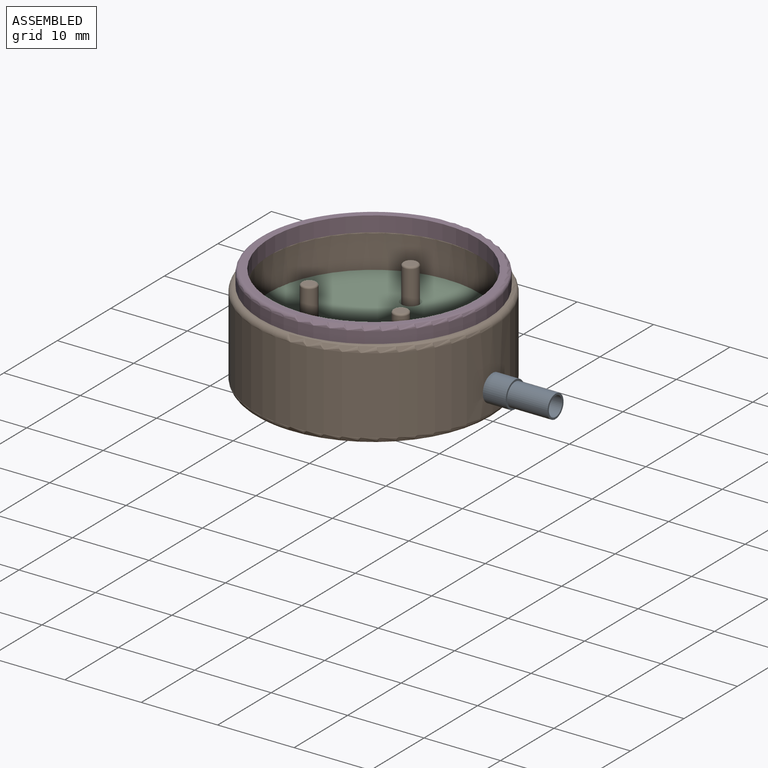
[diagram: assembled view]
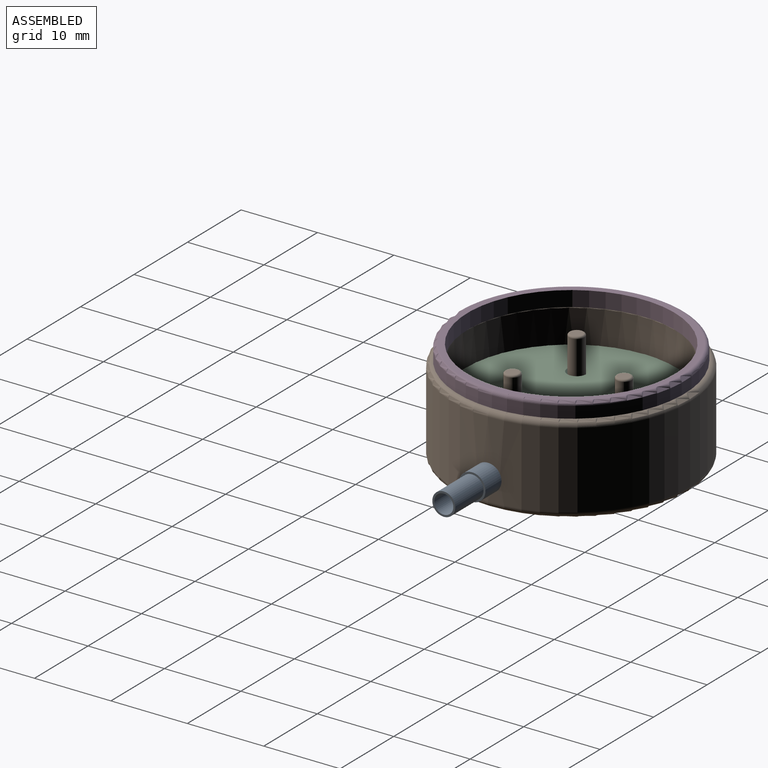
[diagram: assembled view, second angle]
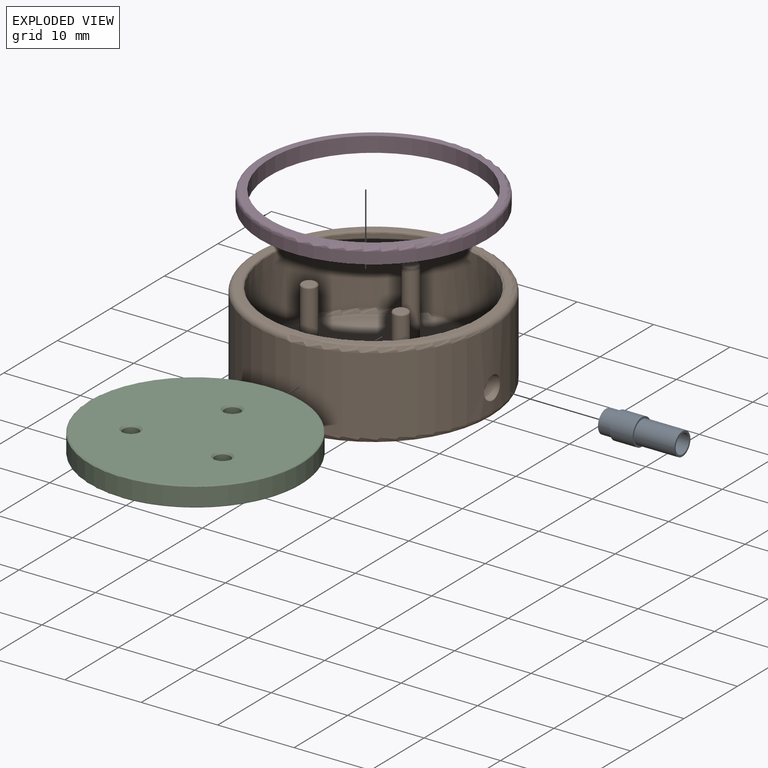
[diagram: exploded view]
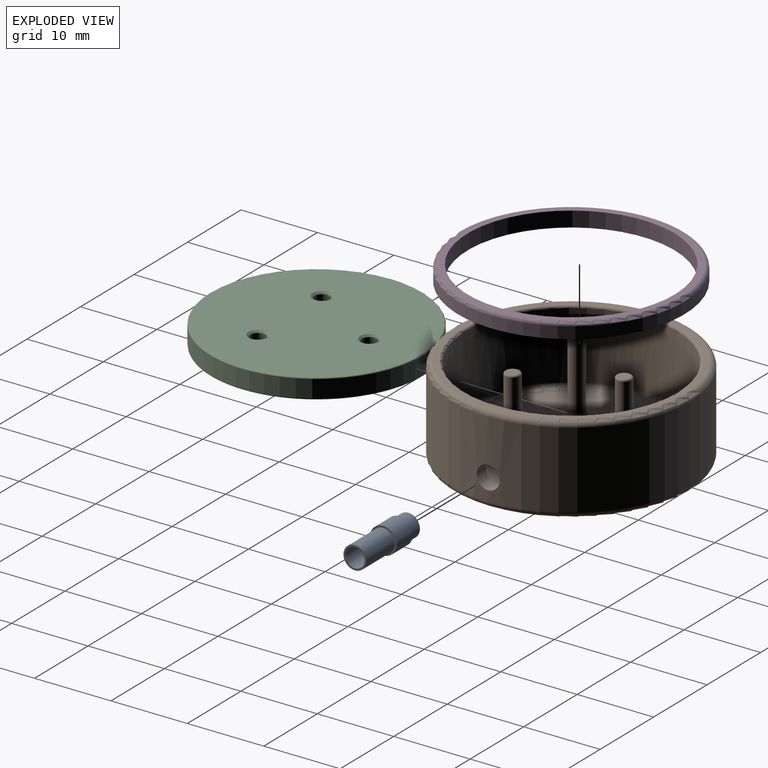
[diagram: exploded view, second angle]
ASSEMBLY  parts=4 mates=3
PART A: 8 faces, bbox 10x3.5x3.5 mm
  f0: cylinder r=1.5mm len=3mm, axis (-1,0,0), area 16.1mm2, adj f4,f7
  f1: cylinder r=1.25mm len=10mm, axis (-1,0,0), area 78.5mm2, adj f3,f4
  f2: cylinder r=1.5mm len=5.29mm, axis (-1,0,0), area 49.9mm2, adj f3,f6
  f3: plane 3x3mm, normal (1,0,0), area 2.2mm2, adj f1,f2
  f4: plane 3x3mm, normal (-1,0,0), area 2.2mm2, adj f0,f1
  f5: cylinder r=1.75mm len=3.5mm, axis (-1,0,0), area 33mm2, adj f6,f7
  f6: plane 3.5x3.5mm, normal (1,0,0), area 2.6mm2, adj f2,f5
  f7: plane 3.5x3.5mm, normal (-1,0,0), area 2.6mm2, adj f0,f5
PART B: 22 faces, bbox 33.7x33.7x11.5 mm
  f0: cylinder r=15.57mm len=31.13mm, axis (0,0,-1), area 971.9mm2, adj f6,f7,f21
  f1: cylinder r=13.85mm len=27.71mm, axis (0,0,1), area 759.5mm2, adj f2,f8,f21
  f2: torus R=13.11mm, axis (0,0,1), area 100mm2, adj f1,f5,f21
  f3: plane 29.63x29.63mm, normal (0,0,1), area 64.5mm2, adj f6,f8
  f4: plane 29.63x29.63mm, normal (0,0,-1), area 689.5mm2, adj f7
  f5: plane 26.21x26.21mm, normal (0,0,1), area 510.7mm2, adj f2,f15,f16,f17
  f6: torus R=14.81mm, axis (0,0,1), area 113.2mm2, adj f0,f3
  f7: torus R=14.81mm, axis (0,0,1), area 113.2mm2, adj f0,f4
  f8: torus R=14.1mm, axis (0,0,1), area 34.4mm2, adj f1,f3
  f9: cylinder r=1mm len=8.8mm, axis (0,0,-1), area 55.3mm2, adj f17,f20
  f10: plane 1.5x1.5mm, normal (0,0,1), area 1.8mm2, adj f20
  f11: cylinder r=1mm len=8.8mm, axis (0,0,-1), area 55.3mm2, adj f16,f19
  f12: plane 1.5x1.5mm, normal (0,0,1), area 1.8mm2, adj f19
  f13: cylinder r=1mm len=8.8mm, axis (0,0,-1), area 55.3mm2, adj f15,f18
  f14: plane 1.5x1.5mm, normal (0,0,1), area 1.8mm2, adj f18
  f15: torus R=1.75mm, axis (0,0,1), area 9.4mm2, adj f5,f13
  f16: torus R=1.75mm, axis (0,0,1), area 9.4mm2, adj f5,f11
  f17: torus R=1.75mm, axis (0,0,1), area 9.4mm2, adj f5,f9
  f18: torus R=0.75mm, axis (0,0,1), area 2.2mm2, adj f13,f14
  f19: torus R=0.75mm, axis (0,0,1), area 2.2mm2, adj f11,f12
  f20: torus R=0.75mm, axis (0,0,1), area 2.2mm2, adj f9,f10
  f21: cylinder r=1.5mm len=3mm, axis (-1,0,0), area 16.3mm2, adj f0,f1,f2
PART C: 14 faces, bbox 30x30x2.6 mm
  f0: cylinder r=1mm len=2.1mm, axis (0,0,-1), area 13.2mm2, adj f10,f13
  f1: cylinder r=1mm len=2.1mm, axis (0,0,-1), area 13.2mm2, adj f8,f9
  f2: cylinder r=1mm len=2.1mm, axis (0,0,-1), area 13.2mm2, adj f11,f12
  f3: cylinder r=13.85mm len=27.71mm, axis (0,0,-1), area 200.2mm2, adj f6,f7
  f4: plane 27.41x27.41mm, normal (0,0,1), area 575.3mm2, adj f7,f9,f12,f13
  f5: plane 27.41x27.41mm, normal (0,0,-1), area 575.3mm2, adj f6,f8,f10,f11
  f6: torus R=13.71mm, axis (0,0,1), area 20.4mm2, adj f3,f5
  f7: torus R=13.71mm, axis (0,0,1), area 20.4mm2, adj f3,f4
  f8: cone r=1.25mm half-angle=45deg, axis (0,0,-1), area 2.5mm2, adj f1,f5
  f9: cone r=1mm half-angle=45deg, axis (0,0,1), area 2.5mm2, adj f1,f4
  f10: cone r=1.25mm half-angle=45deg, axis (0,0,-1), area 2.5mm2, adj f0,f5
  f11: cone r=1.25mm half-angle=45deg, axis (0,0,-1), area 2.5mm2, adj f2,f5
  f12: cone r=1mm half-angle=45deg, axis (0,0,1), area 2.5mm2, adj f2,f4
  f13: cone r=1mm half-angle=45deg, axis (0,0,1), area 2.5mm2, adj f0,f4
PART D: 5 faces, bbox 32.1x32.1x2 mm
  f0: cylinder r=13.54mm len=27.09mm, axis (0,0,-1), area 170.2mm2, adj f2,f3
  f1: cylinder r=14.81mm len=29.63mm, axis (0,0,-1), area 139.6mm2, adj f3,f4
  f2: plane 28.63x28.63mm, normal (0,0,1), area 67.6mm2, adj f0,f4
  f3: plane 29.63x29.63mm, normal (0,0,-1), area 113.4mm2, adj f0,f1
  f4: torus R=14.31mm, axis (0,0,1), area 72.2mm2, adj f1,f2
PLACE A t=(14.17,1.47,3.85)mm
PLACE B t=(0.36,1.47,0.25)mm fixed
PLACE C rot(axis=(0,1,0),180deg) t=(0.36,1.47,7.24)mm
PLACE D t=(0.36,1.47,11.76)mm
MATE fastened A.f0 <-> B.f21  axis (-1,0,0) through (15.02,1.47,3.85)mm
MATE fastened D.f1 <-> B.f0  axis (0,0,-1) through (0.36,1.47,11.76)mm
MATE slider C.f3 <-> B.f1  axis (0,0,1) through (0.36,1.47,7.24)mm
